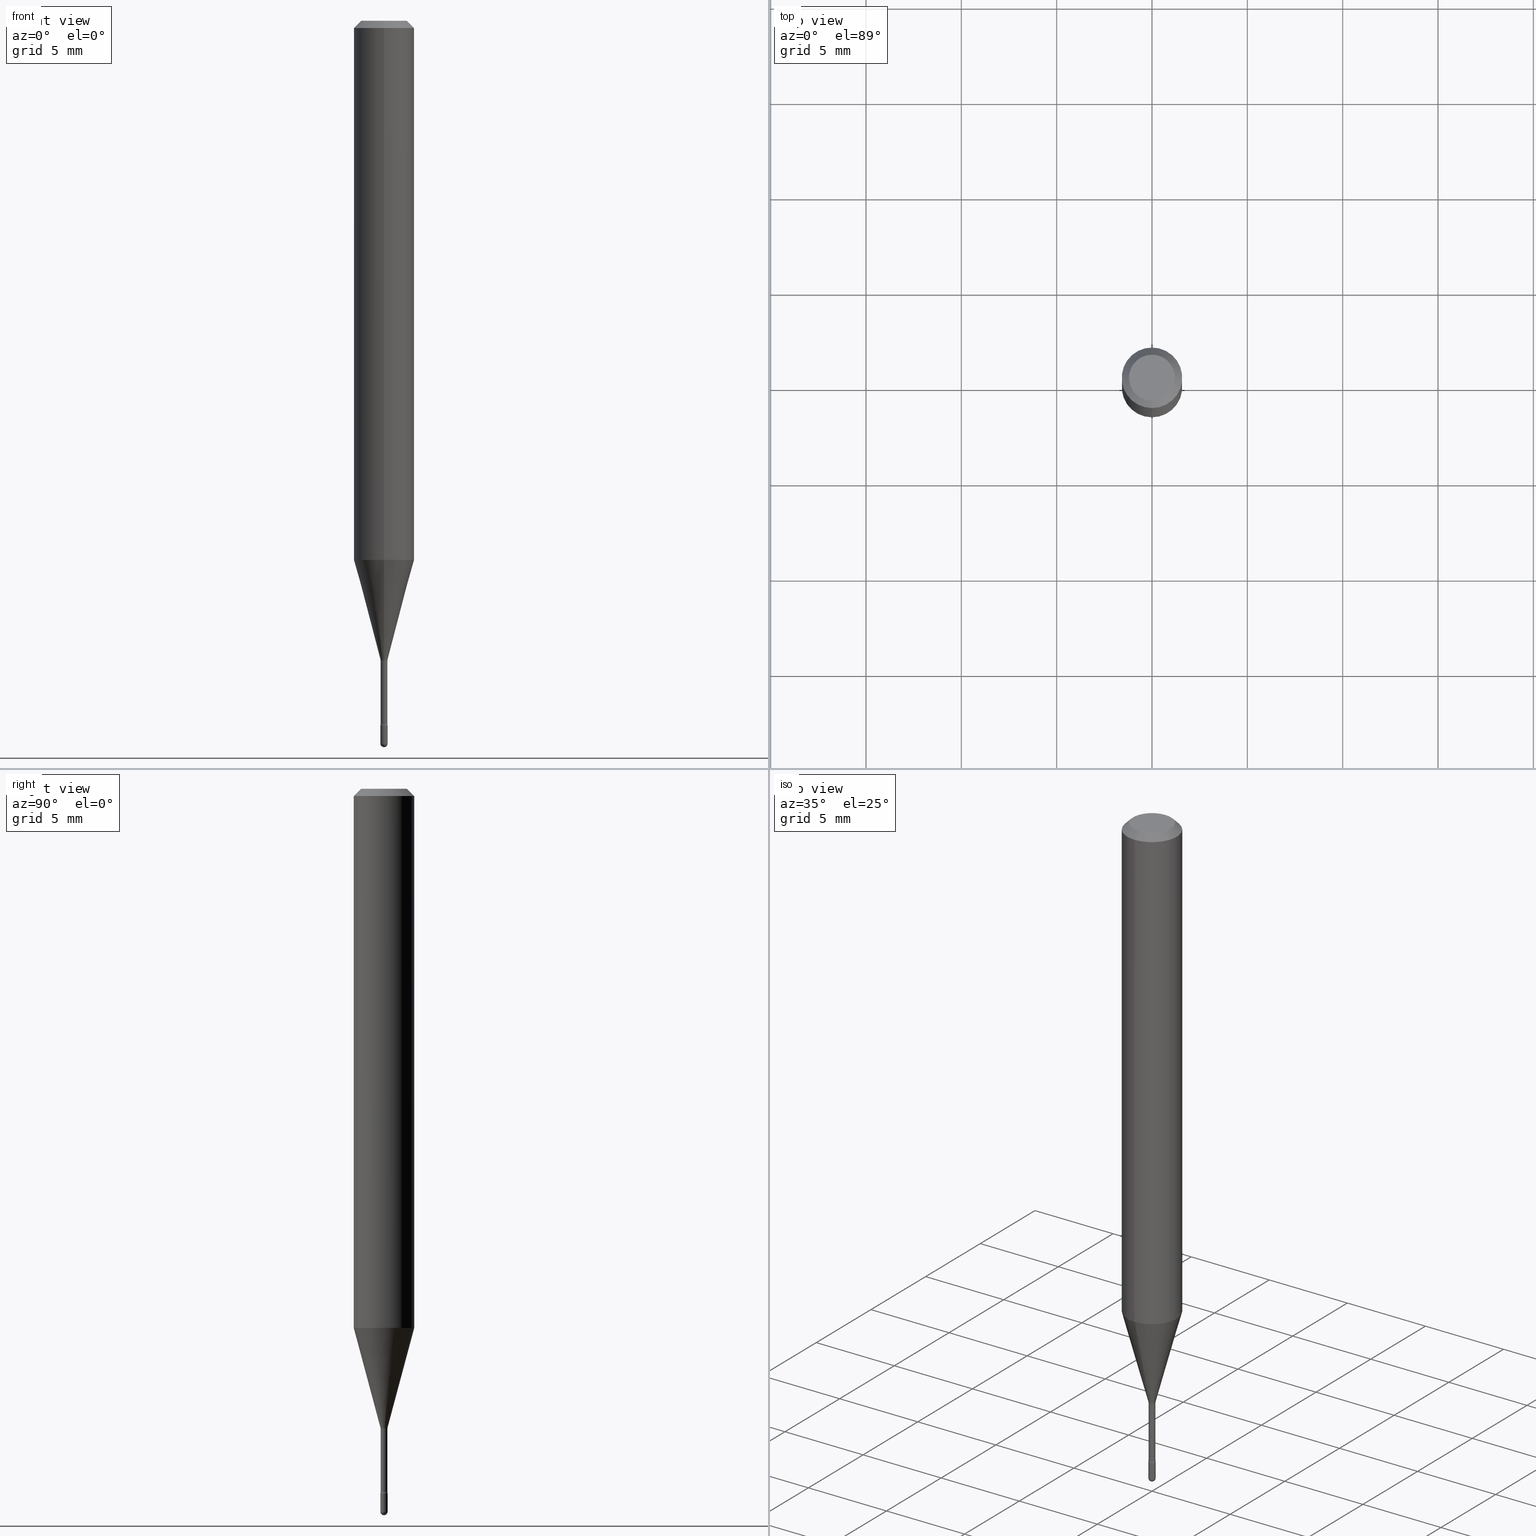
[diagram: canonical four-view strip — front | top / right | iso, engineering-drawing reading convention]
A machine part, canonical four-view strip (front | top / right | iso — engineering-drawing reading convention). The complete STEP part file that produces these views, byte-faithful:
ISO-10303-21;
HEADER;
FILE_DESCRIPTION (( 'STEP AP203' ),
    '1' );
FILE_NAME ('09786.STEP',
    '2024-04-10T01:17:43',
    ( '' ),
    ( '' ),
    'SwSTEP 2.0',
    'SolidWorks 2023',
    '' );
FILE_SCHEMA (( 'CONFIG_CONTROL_DESIGN' ));
ENDSEC;

DATA;
#1 = DIRECTION ( 'NONE',  ( -2.445440204151626769E-29, 3.491522298583058262E-15, 1.000000000000000000 ) ) ;
#2 = EDGE_CURVE ( 'NONE', #88, #235, #210, .T. ) ;
#3 = VERTEX_POINT ( 'NONE', #437 ) ;
#4 = SPHERICAL_SURFACE ( 'NONE', #176, 0.007500000000000062172 ) ;
#5 = PERSON_AND_ORGANIZATION ( #339, #409 ) ;
#6 = APPLICATION_CONTEXT ( 'configuration controlled 3d designs of mechanical parts and assemblies' ) ;
#7 = DIRECTION ( 'NONE',  ( -2.445440204151626769E-29, 3.491522298583058262E-15, 1.000000000000000000 ) ) ;
#8 = EDGE_LOOP ( 'NONE', ( #385, #167, #326, #481 ) ) ;
#9 = DIRECTION ( 'NONE',  ( -4.851104656540964275E-15, -0.7071067811865500152, -0.7071067811865450192 ) ) ;
#10 = AXIS2_PLACEMENT_3D ( 'NONE', #399, #24, #221 ) ;
#11 = PRODUCT_DEFINITION_FORMATION_WITH_SPECIFIED_SOURCE ( 'ANY', '', #51, .NOT_KNOWN. ) ;
#12 = DIRECTION ( 'NONE',  ( -2.445440204151626769E-29, 3.491522298583058262E-15, 1.000000000000000000 ) ) ;
#13 = DIRECTION ( 'NONE',  ( -6.982962677686265922E-15, -1.000000000000000000, 3.491522298583057473E-15 ) ) ;
#14 = VERTEX_POINT ( 'NONE', #174 ) ;
#15 = DIRECTION ( 'NONE',  ( -2.445440204151626769E-29, 3.491522298583058262E-15, 1.000000000000000000 ) ) ;
#16 = DATE_AND_TIME ( #225, #103 ) ;
#17 = EDGE_CURVE ( 'NONE', #554, #135, #349, .T. ) ;
#18 =( NAMED_UNIT ( * ) PLANE_ANGLE_UNIT ( ) SI_UNIT ( $, .RADIAN. ) );
#19 = DIRECTION ( 'NONE',  ( -2.445468806185136597E-29, 3.491481338843145583E-15, 1.000000000000000000 ) ) ;
#20 = COORDINATED_UNIVERSAL_TIME_OFFSET ( 5, 0, .BEHIND. ) ;
#21 = CARTESIAN_POINT ( 'NONE',  ( 4.440892098500896347E-16, 0.06249999999999610034, -1.113057782720306754 ) ) ;
#22 = AXIS2_PLACEMENT_3D ( 'NONE', #97, #260, #432 ) ;
#23 = AXIS2_PLACEMENT_3D ( 'NONE', #220, #207, #389 ) ;
#24 = DIRECTION ( 'NONE',  ( 1.000000000000000000, -7.105427357601001070E-15, 4.926316010154226359E-29 ) ) ;
#25 = EDGE_CURVE ( 'NONE', #118, #364, #275, .T. ) ;
#26 = CARTESIAN_POINT ( 'NONE',  ( 3.558157112999374623E-29, -5.080105348016777334E-15, -1.455000000000000293 ) ) ;
#27 = CARTESIAN_POINT ( 'NONE',  ( 3.668160306227460770E-31, -5.237283447874616285E-17, -0.01500000000000008271 ) ) ;
#28 = VECTOR ( 'NONE', #68, 39.37007874015748143 ) ;
#29 = AXIS2_PLACEMENT_3D ( 'NONE', #478, #7, #178 ) ;
#30 = DIRECTION ( 'NONE',  ( -6.982962677686265922E-15, -1.000000000000000000, 3.483106191921935554E-15 ) ) ;
#31 = ORIENTED_EDGE ( 'NONE', *, *, #59, .F. ) ;
#32 = ORIENTED_EDGE ( 'NONE', *, *, #455, .T. ) ;
#33 = ADVANCED_FACE ( 'NONE', ( #527 ), #4, .T. ) ;
#34 = CARTESIAN_POINT ( 'NONE',  ( -0.007499999999999998855, 5.329070518200750581E-17, -3.689201317691178390E-31 ) ) ;
#35 = VERTEX_POINT ( 'NONE', #419 ) ;
#36 = TOROIDAL_SURFACE ( 'NONE', #441, 0.02205000000000001750, 0.01499999999999995087 ) ;
#37 = CC_DESIGN_APPROVAL ( #239, ( #155 ) ) ;
#38 = PERSON_AND_ORGANIZATION ( #339, #409 ) ;
#39 = CARTESIAN_POINT ( 'NONE',  ( -5.279896712710250158E-17, -0.007561112605668583904, -1.318092501787273330 ) ) ;
#40 = DIRECTION ( 'NONE',  ( -2.445440204151626769E-29, 3.491522298583058656E-15, 1.000000000000000000 ) ) ;
#41 = CARTESIAN_POINT ( 'NONE',  ( 3.649862193231316236E-29, -5.211035898223394834E-15, -1.492499999999999938 ) ) ;
#42 = CC_DESIGN_PERSON_AND_ORGANIZATION_ASSIGNMENT ( #50, #530, ( #11 ) ) ;
#43 = DIRECTION ( 'NONE',  ( -6.982962677686265922E-15, -1.000000000000000000, 0.000000000000000000 ) ) ;
#44 = ORIENTED_EDGE ( 'NONE', *, *, #311, .F. ) ;
#45 = DIRECTION ( 'NONE',  ( 2.445440204151626209E-29, -3.491522298583058656E-15, -1.000000000000000000 ) ) ;
#46 = ORIENTED_EDGE ( 'NONE', *, *, #401, .T. ) ;
#47 = ORIENTED_EDGE ( 'NONE', *, *, #428, .T. ) ;
#48 = ORIENTED_EDGE ( 'NONE', *, *, #143, .F. ) ;
#49 = EDGE_LOOP ( 'NONE', ( #213, #387, #279, #161 ) ) ;
#50 = PERSON_AND_ORGANIZATION ( #339, #409 ) ;
#51 = PRODUCT ( '09786', '09786', '', ( #255 ) ) ;
#52 = DIRECTION ( 'NONE',  ( 6.982962677686265922E-15, 1.000000000000000000, -3.491522298583058656E-15 ) ) ;
#53 = AXIS2_PLACEMENT_3D ( 'NONE', #245, #69, #427 ) ;
#54 = AXIS2_PLACEMENT_3D ( 'NONE', #173, #524, #483 ) ;
#55 = EDGE_CURVE ( 'NONE', #3, #488, #543, .T. ) ;
#56 = DATE_AND_TIME ( #537, #451 ) ;
#57 = DIRECTION ( 'NONE',  ( -2.445440204151626769E-29, 3.491522298583058262E-15, 1.000000000000000000 ) ) ;
#58 = COORDINATED_UNIVERSAL_TIME_OFFSET ( 5, 0, .BEHIND. ) ;
#59 = EDGE_CURVE ( 'NONE', #274, #82, #499, .T. ) ;
#60 = AXIS2_PLACEMENT_3D ( 'NONE', #473, #485, #421 ) ;
#61 = CARTESIAN_POINT ( 'NONE',  ( -4.922988687765313906E-17, -0.007050000000005132890, -1.451353426265657776 ) ) ;
#62 = DATE_AND_TIME ( #446, #357 ) ;
#63 = ORIENTED_EDGE ( 'NONE', *, *, #169, .T. ) ;
#64 = DIRECTION ( 'NONE',  ( -6.982962677686265922E-15, -1.000000000000000000, 0.000000000000000000 ) ) ;
#65 = AXIS2_PLACEMENT_3D ( 'NONE', #563, #440, #141 ) ;
#66 = ADVANCED_FACE ( 'NONE', ( #308 ), #495, .T. ) ;
#67 = ORIENTED_EDGE ( 'NONE', *, *, #175, .F. ) ;
#68 = DIRECTION ( 'NONE',  ( -2.445468806185136877E-29, 3.491481338843145188E-15, 1.000000000000000000 ) ) ;
#69 = DIRECTION ( 'NONE',  ( -2.445440204151626769E-29, 3.491522298583058262E-15, 1.000000000000000000 ) ) ;
#70 = ADVANCED_BREP_SHAPE_REPRESENTATION ( '09786', ( #509, #519, #284 ), #544 ) ;
#71 = ORIENTED_EDGE ( 'NONE', *, *, #311, .T. ) ;
#72 = CARTESIAN_POINT ( 'NONE',  ( 3.232810294138806027E-29, -4.615704448594496414E-15, -1.321974787463811252 ) ) ;
#73 = ORIENTED_EDGE ( 'NONE', *, *, #107, .F. ) ;
#74 = FACE_OUTER_BOUND ( 'NONE', #49, .T. ) ;
#75 = ADVANCED_FACE ( 'NONE', ( #453 ), #397, .T. ) ;
#76 = CLOSED_SHELL ( 'NONE', ( #515, #75, #505, #540, #557, #90, #358, #474, #189, #394, #363, #291, #160, #193 ) ) ;
#77 = AXIS2_PLACEMENT_3D ( 'NONE', #41, #380, #164 ) ;
#78 = ORIENTED_EDGE ( 'NONE', *, *, #463, .F. ) ;
#79 = AXIS2_PLACEMENT_3D ( 'NONE', #130, #295, #520 ) ;
#80 = DIRECTION ( 'NONE',  ( -2.445440204151626769E-29, 3.491522298583058262E-15, 1.000000000000000000 ) ) ;
#81 = DIRECTION ( 'NONE',  ( -2.445440204151626769E-29, 3.491522298583058262E-15, 1.000000000000000000 ) ) ;
#82 = VERTEX_POINT ( 'NONE', #61 ) ;
#83 = CARTESIAN_POINT ( 'NONE',  ( 3.549198019023252615E-29, -5.067432850931467104E-15, -1.451353426265657776 ) ) ;
#84 = CC_DESIGN_PERSON_AND_ORGANIZATION_ASSIGNMENT ( #258, #434, ( #51 ) ) ;
#85 = EDGE_LOOP ( 'NONE', ( #47, #388, #322, #272 ) ) ;
#86 = APPROVAL ( #309, 'UNSPECIFIED' ) ;
#87 = CARTESIAN_POINT ( 'NONE',  ( -4.287811248607203282E-16, -0.06250000000000005551, -0.01499999999999986587 ) ) ;
#88 = VERTEX_POINT ( 'NONE', #536 ) ;
#89 = AXIS2_PLACEMENT_3D ( 'NONE', #104, #105, #445 ) ;
#90 = ADVANCED_FACE ( 'NONE', ( #268 ), #367, .T. ) ;
#91 = DATE_AND_TIME ( #381, #177 ) ;
#92 = CARTESIAN_POINT ( 'NONE',  ( -1.169113584055446105E-44, 1.669184350826100908E-30, 4.780733988912460139E-16 ) ) ;
#93 = LINE ( 'NONE', #486, #236 ) ;
#94 = EDGE_LOOP ( 'NONE', ( #516, #202, #475, #123, #472 ) ) ;
#95 = APPLICATION_PROTOCOL_DEFINITION ( 'international standard', 'config_control_design', 1994, #6 ) ;
#96 = CARTESIAN_POINT ( 'NONE',  ( -5.237222008261123535E-17, -0.007500000000005053839, -1.455000000000000293 ) ) ;
#97 = CARTESIAN_POINT ( 'NONE',  ( 3.549198019023252615E-29, -5.067432850931467104E-15, -1.451353426265657776 ) ) ;
#98 = CARTESIAN_POINT ( 'NONE',  ( -1.539743270429467860E-16, -0.02205000000000508290, -1.451353426265657776 ) ) ;
#99 = EDGE_CURVE ( 'NONE', #274, #121, #458, .T. ) ;
#100 = CARTESIAN_POINT ( 'NONE',  ( 3.668160306227460770E-31, -5.237283447874616285E-17, -0.01500000000000008271 ) ) ;
#101 = CIRCLE ( 'NONE', #327, 0.04749999999999999362 ) ;
#102 = CARTESIAN_POINT ( 'NONE',  ( 3.649862193231316236E-29, -5.211035898223394834E-15, -1.492499999999999938 ) ) ;
#103 = LOCAL_TIME ( 21, 17, 43.00000000000000000, #58 ) ;
#104 = CARTESIAN_POINT ( 'NONE',  ( 3.223316396661397957E-29, -4.602149361585393645E-15, -1.318092501787273330 ) ) ;
#105 = DIRECTION ( 'NONE',  ( -2.445440204151626769E-29, 3.491522298583058262E-15, 1.000000000000000000 ) ) ;
#106 = DIMENSIONAL_EXPONENTS ( 1.000000000000000000, 0.000000000000000000, 0.000000000000000000, 0.000000000000000000, 0.000000000000000000, 0.000000000000000000, 0.000000000000000000 ) ;
#107 = EDGE_CURVE ( 'NONE', #197, #518, #208, .T. ) ;
#108 =( CONVERSION_BASED_UNIT ( 'INCH', #497 ) LENGTH_UNIT ( ) NAMED_UNIT ( #106 ) );
#109 = CARTESIAN_POINT ( 'NONE',  ( -1.169113584055446105E-44, 1.669184350826100908E-30, 4.780733988912460139E-16 ) ) ;
#110 = DATE_TIME_ROLE ( 'creation_date' ) ;
#111 = FACE_OUTER_BOUND ( 'NONE', #422, .T. ) ;
#112 = CIRCLE ( 'NONE', #312, 0.01500000000000002373 ) ;
#113 = DIRECTION ( 'NONE',  ( -6.982962677686266711E-15, -1.000000000000000000, 3.491522298583062601E-15 ) ) ;
#114 = PERSON_AND_ORGANIZATION ( #339, #409 ) ;
#115 = FACE_OUTER_BOUND ( 'NONE', #462, .T. ) ;
#116 = ORIENTED_EDGE ( 'NONE', *, *, #502, .F. ) ;
#117 = DIRECTION ( 'NONE',  ( 7.105427357601001859E-15, 1.000000000000000000, 0.000000000000000000 ) ) ;
#118 = VERTEX_POINT ( 'NONE', #145 ) ;
#119 = AXIS2_PLACEMENT_3D ( 'NONE', #487, #217, #113 ) ;
#120 = CARTESIAN_POINT ( 'NONE',  ( 5.372493636221887753E-17, 0.007561112605659379461, -1.318092501787273330 ) ) ;
#121 = VERTEX_POINT ( 'NONE', #230 ) ;
#122 = CARTESIAN_POINT ( 'NONE',  ( 5.009326287108727769E-17, 0.007050000000000031068, 4.534581666862353586E-16 ) ) ;
#123 = ORIENTED_EDGE ( 'NONE', *, *, #436, .F. ) ;
#124 = CARTESIAN_POINT ( 'NONE',  ( 0.000000000000000000, 0.000000000000000000, 0.000000000000000000 ) ) ;
#125 = ORIENTED_EDGE ( 'NONE', *, *, #436, .T. ) ;
#126 = DIRECTION ( 'NONE',  ( -2.438088387897960049E-29, 3.491481338843145188E-15, 1.000000000000000000 ) ) ;
#127 = AXIS2_PLACEMENT_3D ( 'NONE', #288, #559, #117 ) ;
#128 = AXIS2_PLACEMENT_3D ( 'NONE', #124, #504, #369 ) ;
#129 = CARTESIAN_POINT ( 'NONE',  ( 3.649862193231316236E-29, -5.211035898223394834E-15, -1.492499999999999938 ) ) ;
#130 = CARTESIAN_POINT ( 'NONE',  ( 2.721916251408103540E-29, -3.886266067979366571E-15, -1.113057782720306532 ) ) ;
#131 = CC_DESIGN_PERSON_AND_ORGANIZATION_ASSIGNMENT ( #405, #222, ( #11 ) ) ;
#132 = EDGE_LOOP ( 'NONE', ( #296, #240, #456, #67 ) ) ;
#133 = CARTESIAN_POINT ( 'NONE',  ( 3.558115497040617955E-29, -5.080164944438349964E-15, -1.455000000000000293 ) ) ;
#134 = EDGE_CURVE ( 'NONE', #518, #197, #101, .T. ) ;
#135 = VERTEX_POINT ( 'NONE', #404 ) ;
#136 = DIRECTION ( 'NONE',  ( -2.445468806185136597E-29, 3.491481338843145583E-15, 1.000000000000000000 ) ) ;
#137 = ORIENTED_EDGE ( 'NONE', *, *, #25, .T. ) ;
#138 = ORIENTED_EDGE ( 'NONE', *, *, #134, .F. ) ;
#139 = VECTOR ( 'NONE', #153, 39.37007874015748143 ) ;
#140 = CIRCLE ( 'NONE', #321, 0.007499999999999999722 ) ;
#141 = DIRECTION ( 'NONE',  ( -7.105427357601000281E-15, -1.000000000000000000, 0.000000000000000000 ) ) ;
#142 = EDGE_LOOP ( 'NONE', ( #163, #156, #32, #196 ) ) ;
#143 = EDGE_CURVE ( 'NONE', #249, #170, #390, .T. ) ;
#144 = DIRECTION ( 'NONE',  ( -6.982962677686265922E-15, -1.000000000000000000, 3.491522298583058656E-15 ) ) ;
#145 = CARTESIAN_POINT ( 'NONE',  ( -0.007499999999999998855, -5.092279917938078523E-15, -1.492499999999999938 ) ) ;
#146 = DIRECTION ( 'NONE',  ( -2.445440204151626769E-29, 3.491522298583058262E-15, 1.000000000000000000 ) ) ;
#147 = AXIS2_PLACEMENT_3D ( 'NONE', #351, #45, #52 ) ;
#148 = CIRCLE ( 'NONE', #195, 0.007499999999999999722 ) ;
#149 = EDGE_CURVE ( 'NONE', #235, #14, #359, .T. ) ;
#150 = CC_DESIGN_PERSON_AND_ORGANIZATION_ASSIGNMENT ( #5, #523, ( #420 ) ) ;
#151 = DATE_TIME_ROLE ( 'classification_date' ) ;
#152 = CARTESIAN_POINT ( 'NONE',  ( 3.668160306227460770E-31, -5.237283447874616285E-17, -0.01500000000000008271 ) ) ;
#153 = DIRECTION ( 'NONE',  ( -2.445440204151626769E-29, 3.491522298583058656E-15, 1.000000000000000000 ) ) ;
#154 = AXIS2_PLACEMENT_3D ( 'NONE', #392, #12, #179 ) ;
#155 = SECURITY_CLASSIFICATION ( '', '', #398 ) ;
#156 = ORIENTED_EDGE ( 'NONE', *, *, #59, .T. ) ;
#157 = ORIENTED_EDGE ( 'NONE', *, *, #184, .T. ) ;
#158 = CIRCLE ( 'NONE', #53, 0.007561112605663981683 ) ;
#159 = CIRCLE ( 'NONE', #248, 0.01499999999999995087 ) ;
#160 = ADVANCED_FACE ( 'NONE', ( #319 ), #500, .T. ) ;
#161 = ORIENTED_EDGE ( 'NONE', *, *, #482, .F. ) ;
#162 = CARTESIAN_POINT ( 'NONE',  ( 3.649862193231316236E-29, -5.211035898223394834E-15, -1.492499999999999938 ) ) ;
#163 = ORIENTED_EDGE ( 'NONE', *, *, #250, .F. ) ;
#164 = DIRECTION ( 'NONE',  ( 1.000000000000000000, -6.982962677686269077E-15, 0.000000000000000000 ) ) ;
#165 = DIRECTION ( 'NONE',  ( -2.445468806185136597E-29, 3.491481338843145583E-15, 1.000000000000000000 ) ) ;
#166 = AXIS2_PLACEMENT_3D ( 'NONE', #109, #182, #532 ) ;
#167 = ORIENTED_EDGE ( 'NONE', *, *, #428, .F. ) ;
#168 = FACE_OUTER_BOUND ( 'NONE', #282, .T. ) ;
#169 = EDGE_CURVE ( 'NONE', #254, #362, #402, .T. ) ;
#170 = VERTEX_POINT ( 'NONE', #529 ) ;
#171 = CARTESIAN_POINT ( 'NONE',  ( 5.237222008268371194E-17, 0.007499999999994818971, -1.492499999999999938 ) ) ;
#172 = DIRECTION ( 'NONE',  ( -1.000000000000000000, 6.982962677686265922E-15, -4.883557194083113462E-29 ) ) ;
#173 = CARTESIAN_POINT ( 'NONE',  ( 3.549239530682585460E-29, -5.067373403872605275E-15, -1.451353426265657776 ) ) ;
#174 = CARTESIAN_POINT ( 'NONE',  ( -4.364351673553912750E-16, -0.06250000000000005551, -0.01499999999999986587 ) ) ;
#175 = EDGE_CURVE ( 'NONE', #135, #14, #533, .T. ) ;
#176 = AXIS2_PLACEMENT_3D ( 'NONE', #305, #172, #333 ) ;
#177 = LOCAL_TIME ( 21, 17, 43.00000000000000000, #252 ) ;
#178 = DIRECTION ( 'NONE',  ( -6.982962677686265922E-15, -1.000000000000000000, 4.370956789862821150E-15 ) ) ;
#179 = DIRECTION ( 'NONE',  ( -6.982962677686265133E-15, -1.000000000000000000, 0.000000000000000000 ) ) ;
#180 = DIRECTION ( 'NONE',  ( -6.982962677686266711E-15, -1.000000000000000000, 0.000000000000000000 ) ) ;
#181 = CARTESIAN_POINT ( 'NONE',  ( -4.364351673553643551E-16, -0.06250000000000388578, -1.113057782720306310 ) ) ;
#182 = DIRECTION ( 'NONE',  ( -2.445440204151626769E-29, 3.491522298583058262E-15, 1.000000000000000000 ) ) ;
#183 = PERSON_AND_ORGANIZATION ( #339, #409 ) ;
#184 = EDGE_CURVE ( 'NONE', #35, #554, #281, .T. ) ;
#185 = DIRECTION ( 'NONE',  ( 1.000000000000000000, -6.982962677686268288E-15, 0.000000000000000000 ) ) ;
#186 = CIRCLE ( 'NONE', #127, 0.01500000000000002373 ) ;
#187 = DIRECTION ( 'NONE',  ( 2.445440204151626769E-29, -3.491522298583058262E-15, -1.000000000000000000 ) ) ;
#188 = APPROVAL_PERSON_ORGANIZATION ( #183, #239, #403 ) ;
#189 = ADVANCED_FACE ( 'NONE', ( #465 ), #200, .T. ) ;
#190 = DIRECTION ( 'NONE',  ( -6.982962677686266711E-15, -1.000000000000000000, 3.491522298583058262E-15 ) ) ;
#191 = FACE_OUTER_BOUND ( 'NONE', #94, .T. ) ;
#192 = DIRECTION ( 'NONE',  ( 2.445440204151626769E-29, -3.491522298583058262E-15, -1.000000000000000000 ) ) ;
#193 = ADVANCED_FACE ( 'NONE', ( #417 ), #490, .F. ) ;
#194 = AXIS2_PLACEMENT_3D ( 'NONE', #553, #126, #280 ) ;
#195 = AXIS2_PLACEMENT_3D ( 'NONE', #318, #494, #227 ) ;
#196 = ORIENTED_EDGE ( 'NONE', *, *, #299, .F. ) ;
#197 = VERTEX_POINT ( 'NONE', #290 ) ;
#198 = FACE_OUTER_BOUND ( 'NONE', #342, .T. ) ;
#199 = LINE ( 'NONE', #122, #425 ) ;
#200 = CONICAL_SURFACE ( 'NONE', #267, 0.06250000000000000000, 0.7853981633974483900 ) ;
#201 = CC_DESIGN_APPROVAL ( #86, ( #11 ) ) ;
#202 = ORIENTED_EDGE ( 'NONE', *, *, #325, .T. ) ;
#203 = ORIENTED_EDGE ( 'NONE', *, *, #206, .F. ) ;
#204 = CARTESIAN_POINT ( 'NONE',  ( 5.169198402658288125E-17, 0.007049999999994997768, -1.451353426265657776 ) ) ;
#205 = ORIENTED_EDGE ( 'NONE', *, *, #415, .T. ) ;
#206 = EDGE_CURVE ( 'NONE', #88, #35, #158, .T. ) ;
#207 = DIRECTION ( 'NONE',  ( -2.445468806185136597E-29, 3.491481338843145583E-15, 1.000000000000000000 ) ) ;
#208 = CIRCLE ( 'NONE', #320, 0.04749999999999999362 ) ;
#209 = TOROIDAL_SURFACE ( 'NONE', #336, 0.02205000000000000016, 0.01500000000000002373 ) ;
#210 = LINE ( 'NONE', #39, #506 ) ;
#211 = APPLICATION_PROTOCOL_DEFINITION ( 'international standard', 'config_control_design', 1994, #350 ) ;
#212 = CYLINDRICAL_SURFACE ( 'NONE', #391, 0.06250000000000000000 ) ;
#213 = ORIENTED_EDGE ( 'NONE', *, *, #184, .F. ) ;
#214 = PRODUCT_DEFINITION_SHAPE ( 'NONE', 'NONE',  #420 ) ;
#215 = ORIENTED_EDGE ( 'NONE', *, *, #549, .F. ) ;
#216 = CARTESIAN_POINT ( 'NONE',  ( 3.840629472727447874E-16, 0.04749999999999999362, -2.485923956665947374E-16 ) ) ;
#217 = DIRECTION ( 'NONE',  ( -2.445440204151626769E-29, 3.491522298583058262E-15, 1.000000000000000000 ) ) ;
#218 = PERSON_AND_ORGANIZATION ( #339, #409 ) ;
#219 = AXIS2_PLACEMENT_3D ( 'NONE', #234, #276, #400 ) ;
#220 = CARTESIAN_POINT ( 'NONE',  ( 3.649862193231316236E-29, -5.211035898223394834E-15, -1.492499999999999938 ) ) ;
#221 = DIRECTION ( 'NONE',  ( 7.105427357601000281E-15, 1.000000000000000000, 0.000000000000000000 ) ) ;
#222 = PERSON_AND_ORGANIZATION_ROLE ( 'creator' ) ;
#223 = DIRECTION ( 'NONE',  ( 6.982962677686265922E-15, 1.000000000000000000, 0.000000000000000000 ) ) ;
#224 = EDGE_CURVE ( 'NONE', #35, #88, #479, .T. ) ;
#225 = CALENDAR_DATE ( 2024, 9, 4 ) ;
#226 = AXIS2_PLACEMENT_3D ( 'NONE', #384, #564, #344 ) ;
#227 = DIRECTION ( 'NONE',  ( -6.982962677686265922E-15, -1.000000000000000000, 0.000000000000000000 ) ) ;
#228 = CIRCLE ( 'NONE', #79, 0.06250000000000000000 ) ;
#229 = CARTESIAN_POINT ( 'NONE',  ( 3.232848105305976376E-29, -4.615650300851030950E-15, -1.321974787463811252 ) ) ;
#230 = CARTESIAN_POINT ( 'NONE',  ( 5.329070518204289361E-17, 0.007499999999994893564, -1.455000000000000293 ) ) ;
#231 = SHAPE_DEFINITION_REPRESENTATION ( #214, #70 ) ;
#232 = CYLINDRICAL_SURFACE ( 'NONE', #219, 0.007499999999999998855 ) ;
#233 = EDGE_CURVE ( 'NONE', #518, #135, #93, .T. ) ;
#234 = CARTESIAN_POINT ( 'NONE',  ( 0.000000000000000000, 0.000000000000000000, 0.000000000000000000 ) ) ;
#235 = VERTEX_POINT ( 'NONE', #181 ) ;
#236 = VECTOR ( 'NONE', #266, 39.37007874015748143 ) ;
#237 = APPROVAL_PERSON_ORGANIZATION ( #114, #86, #439 ) ;
#238 = CARTESIAN_POINT ( 'NONE',  ( 5.009326287112269015E-17, 0.007049999999995382877, -1.321974787463811252 ) ) ;
#239 = APPROVAL ( #353, 'UNSPECIFIED' ) ;
#240 = ORIENTED_EDGE ( 'NONE', *, *, #482, .T. ) ;
#241 = FACE_OUTER_BOUND ( 'NONE', #433, .T. ) ;
#242 = ORIENTED_EDGE ( 'NONE', *, *, #423, .T. ) ;
#243 = EDGE_LOOP ( 'NONE', ( #44, #203, #477, #63 ) ) ;
#244 = CYLINDRICAL_SURFACE ( 'NONE', #128, 0.007499999999999998855 ) ;
#245 = CARTESIAN_POINT ( 'NONE',  ( 3.223316396661397957E-29, -4.602149361585393645E-15, -1.318092501787273330 ) ) ;
#246 = ORIENTED_EDGE ( 'NONE', *, *, #496, .T. ) ;
#247 = AXIS2_PLACEMENT_3D ( 'NONE', #498, #443, #223 ) ;
#248 = AXIS2_PLACEMENT_3D ( 'NONE', #98, #476, #180 ) ;
#249 = VERTEX_POINT ( 'NONE', #418 ) ;
#250 = EDGE_CURVE ( 'NONE', #274, #362, #199, .T. ) ;
#251 = ORIENTED_EDGE ( 'NONE', *, *, #55, .T. ) ;
#252 = COORDINATED_UNIVERSAL_TIME_OFFSET ( 5, 0, .BEHIND. ) ;
#253 = LINE ( 'NONE', #262, #426 ) ;
#254 = VERTEX_POINT ( 'NONE', #373 ) ;
#255 = MECHANICAL_CONTEXT ( 'NONE', #6, 'mechanical' ) ;
#256 = VECTOR ( 'NONE', #484, 39.37007874015748143 ) ;
#257 = ORIENTED_EDGE ( 'NONE', *, *, #354, .F. ) ;
#258 = PERSON_AND_ORGANIZATION ( #339, #409 ) ;
#259 = CARTESIAN_POINT ( 'NONE',  ( -1.539743270429498181E-16, -0.02205000000000461452, -1.321974787463811252 ) ) ;
#260 = DIRECTION ( 'NONE',  ( -2.445440204151626769E-29, 3.491522298583058262E-15, 1.000000000000000000 ) ) ;
#261 = DIRECTION ( 'NONE',  ( 0.000000000000000000, 0.000000000000000000, 1.000000000000000000 ) ) ;
#262 = CARTESIAN_POINT ( 'NONE',  ( -4.922988687768839744E-17, -0.007050000000000031068, 5.026886310962567679E-16 ) ) ;
#263 = DIRECTION ( 'NONE',  ( -1.807323732225329350E-15, -0.2588190451025180194, 0.9659258262890689783 ) ) ;
#264 = ORIENTED_EDGE ( 'NONE', *, *, #134, .T. ) ;
#265 = LINE ( 'NONE', #87, #513 ) ;
#266 = DIRECTION ( 'NONE',  ( 4.937700262164548042E-15, 0.7071067811865451302, -0.7071067811865499042 ) ) ;
#267 = AXIS2_PLACEMENT_3D ( 'NONE', #152, #192, #375 ) ;
#268 = FACE_OUTER_BOUND ( 'NONE', #332, .T. ) ;
#269 = DIRECTION ( 'NONE',  ( -2.445468806185136597E-29, 3.491481338843145583E-15, 1.000000000000000000 ) ) ;
#270 =( NAMED_UNIT ( * ) SI_UNIT ( $, .STERADIAN. ) SOLID_ANGLE_UNIT ( ) );
#271 = DIRECTION ( 'NONE',  ( -6.982962677686266711E-15, -1.000000000000000000, 3.491522298583058262E-15 ) ) ;
#272 = ORIENTED_EDGE ( 'NONE', *, *, #455, .F. ) ;
#273 = CARTESIAN_POINT ( 'NONE',  ( -1.169113584055446105E-44, 1.669184350826100908E-30, 4.780733988912460139E-16 ) ) ;
#274 = VERTEX_POINT ( 'NONE', #204 ) ;
#275 = CIRCLE ( 'NONE', #77, 0.007499999999999998855 ) ;
#276 = DIRECTION ( 'NONE',  ( -2.445468806185136597E-29, 3.491481338843145583E-15, 1.000000000000000000 ) ) ;
#277 = ADVANCED_FACE ( 'NONE', ( #241 ), #244, .T. ) ;
#278 = DIRECTION ( 'NONE',  ( -2.445440204151626769E-29, 3.491522298583058262E-15, 1.000000000000000000 ) ) ;
#279 = ORIENTED_EDGE ( 'NONE', *, *, #2, .T. ) ;
#280 = DIRECTION ( 'NONE',  ( 1.000000000000000000, -6.982962677686265922E-15, 4.876176775795935793E-29 ) ) ;
#281 = LINE ( 'NONE', #120, #469 ) ;
#282 = EDGE_LOOP ( 'NONE', ( #264, #377 ) ) ;
#283 = CIRCLE ( 'NONE', #60, 0.06250000000000000000 ) ;
#284 = AXIS2_PLACEMENT_3D ( 'NONE', #558, #261, #338 ) ;
#285 = DIRECTION ( 'NONE',  ( 1.839019923739599526E-15, 0.2588190451025248473, 0.9659258262890670910 ) ) ;
#286 = DIRECTION ( 'NONE',  ( -2.445440204151626769E-29, 3.491522298583058262E-15, 1.000000000000000000 ) ) ;
#287 = EDGE_LOOP ( 'NONE', ( #246, #294 ) ) ;
#288 = CARTESIAN_POINT ( 'NONE',  ( 1.566746732351343861E-16, 0.02204999999999538579, -1.321974787463811252 ) ) ;
#289 = EDGE_LOOP ( 'NONE', ( #303, #71, #408, #503 ) ) ;
#290 = CARTESIAN_POINT ( 'NONE',  ( -3.773273898774340269E-16, -0.04749999999999999362, 8.310222269879576198E-17 ) ) ;
#291 = ADVANCED_FACE ( 'NONE', ( #414 ), #36, .F. ) ;
#292 = AXIS2_PLACEMENT_3D ( 'NONE', #100, #278, #30 ) ;
#293 = LOCAL_TIME ( 21, 17, 43.00000000000000000, #448 ) ;
#294 = ORIENTED_EDGE ( 'NONE', *, *, #143, .T. ) ;
#295 = DIRECTION ( 'NONE',  ( -2.445440204151626769E-29, 3.491522298583058262E-15, 1.000000000000000000 ) ) ;
#296 = ORIENTED_EDGE ( 'NONE', *, *, #17, .F. ) ;
#297 = DIRECTION ( 'NONE',  ( -6.982962677686265922E-15, -1.000000000000000000, 0.000000000000000000 ) ) ;
#298 = ORIENTED_EDGE ( 'NONE', *, *, #383, .T. ) ;
#299 = EDGE_CURVE ( 'NONE', #362, #254, #550, .T. ) ;
#300 = DIRECTION ( 'NONE',  ( 1.000000000000000000, -6.982962677686268288E-15, 0.000000000000000000 ) ) ;
#301 = CIRCLE ( 'NONE', #406, 0.007499999999999998855 ) ;
#302 = AXIS2_PLACEMENT_3D ( 'NONE', #27, #187, #454 ) ;
#303 = ORIENTED_EDGE ( 'NONE', *, *, #224, .F. ) ;
#304 = COORDINATED_UNIVERSAL_TIME_OFFSET ( 5, 0, .BEHIND. ) ;
#305 = CARTESIAN_POINT ( 'NONE',  ( 3.649862193231316236E-29, -5.211035898223394834E-15, -1.492499999999999938 ) ) ;
#306 = VERTEX_POINT ( 'NONE', #457 ) ;
#307 = CARTESIAN_POINT ( 'NONE',  ( 0.007499999999999998855, -5.237222008264699293E-17, 3.657132581846951319E-31 ) ) ;
#308 = FACE_OUTER_BOUND ( 'NONE', #366, .T. ) ;
#309 = APPROVAL_STATUS ( 'not_yet_approved' ) ;
#310 = ORIENTED_EDGE ( 'NONE', *, *, #149, .F. ) ;
#311 = EDGE_CURVE ( 'NONE', #35, #362, #186, .T. ) ;
#312 = AXIS2_PLACEMENT_3D ( 'NONE', #259, #435, #378 ) ;
#313 = CIRCLE ( 'NONE', #29, 0.06250000000000000000 ) ;
#314 = DIRECTION ( 'NONE',  ( 1.000000000000000000, -6.982962677686269077E-15, 0.000000000000000000 ) ) ;
#315 = UNCERTAINTY_MEASURE_WITH_UNIT (LENGTH_MEASURE( 1.000000000000000082E-05 ), #108, 'distance_accuracy_value', 'NONE');
#316 = CYLINDRICAL_SURFACE ( 'NONE', #470, 0.06250000000000000000 ) ;
#317 = ADVANCED_FACE ( 'NONE', ( #412 ), #555, .T. ) ;
#318 = CARTESIAN_POINT ( 'NONE',  ( 3.558115497040617955E-29, -5.080164944438349964E-15, -1.455000000000000293 ) ) ;
#319 = FACE_OUTER_BOUND ( 'NONE', #142, .T. ) ;
#320 = AXIS2_PLACEMENT_3D ( 'NONE', #356, #15, #190 ) ;
#321 = AXIS2_PLACEMENT_3D ( 'NONE', #133, #346, #297 ) ;
#322 = ORIENTED_EDGE ( 'NONE', *, *, #169, .F. ) ;
#323 = ORIENTED_EDGE ( 'NONE', *, *, #383, .F. ) ;
#324 = DIRECTION ( 'NONE',  ( -2.445440204151626769E-29, 3.491522298583058656E-15, 1.000000000000000000 ) ) ;
#325 = EDGE_CURVE ( 'NONE', #118, #249, #460, .T. ) ;
#326 = ORIENTED_EDGE ( 'NONE', *, *, #407, .T. ) ;
#327 = AXIS2_PLACEMENT_3D ( 'NONE', #352, #57, #271 ) ;
#328 = AXIS2_PLACEMENT_3D ( 'NONE', #102, #269, #314 ) ;
#329 = DIRECTION ( 'NONE',  ( -2.445440204151626209E-29, 3.491522298583058656E-15, 1.000000000000000000 ) ) ;
#330 = ORIENTED_EDGE ( 'NONE', *, *, #534, .F. ) ;
#331 = DIRECTION ( 'NONE',  ( -6.982962677686265133E-15, -1.000000000000000000, 0.000000000000000000 ) ) ;
#332 = EDGE_LOOP ( 'NONE', ( #438, #157, #116, #374 ) ) ;
#333 = DIRECTION ( 'NONE',  ( 6.982962677686265922E-15, 1.000000000000000000, 0.000000000000000000 ) ) ;
#334 = APPROVAL_ROLE ( '' ) ;
#335 = AXIS2_PLACEMENT_3D ( 'NONE', #72, #376, #331 ) ;
#336 = AXIS2_PLACEMENT_3D ( 'NONE', #528, #146, #360 ) ;
#337 = ORIENTED_EDGE ( 'NONE', *, *, #233, .F. ) ;
#338 = DIRECTION ( 'NONE',  ( 1.000000000000000000, 0.000000000000000000, 0.000000000000000000 ) ) ;
#339 = PERSON ( 'UNSPECIFIED', 'UNSPECIFIED', 'UNSPECIFIED', ('UNSPECIFIED'), ('UNSPECIFIED'), ('UNSPECIFIED') ) ;
#340 = FACE_OUTER_BOUND ( 'NONE', #132, .T. ) ;
#341 = CC_DESIGN_DATE_AND_TIME_ASSIGNMENT ( #56, #110, ( #420 ) ) ;
#342 = EDGE_LOOP ( 'NONE', ( #215, #459 ) ) ;
#343 = CARTESIAN_POINT ( 'NONE',  ( 3.558157112999374623E-29, -5.080105348016777334E-15, -1.455000000000000293 ) ) ;
#344 = DIRECTION ( 'NONE',  ( -6.982962677686265922E-15, -1.000000000000000000, 0.000000000000000000 ) ) ;
#345 = DIRECTION ( 'NONE',  ( 6.982962677686265922E-15, 1.000000000000000000, 0.000000000000000000 ) ) ;
#346 = DIRECTION ( 'NONE',  ( -2.445440204151626769E-29, 3.491522298583058262E-15, 1.000000000000000000 ) ) ;
#347 = CONICAL_SURFACE ( 'NONE', #561, 0.007561112605663981683, 0.2617993877991501850 ) ;
#348 = CC_DESIGN_SECURITY_CLASSIFICATION ( #155, ( #11 ) ) ;
#349 = LINE ( 'NONE', #556, #256 ) ;
#350 = APPLICATION_CONTEXT ( 'configuration controlled 3d designs of mechanical parts and assemblies' ) ;
#351 = CARTESIAN_POINT ( 'NONE',  ( 3.316907271900976096E-16, 0.04749999999999999362, 3.181684702097800109E-17 ) ) ;
#352 = CARTESIAN_POINT ( 'NONE',  ( 2.023344873123560110E-45, -2.889258963187964091E-31, -8.274508648389948771E-17 ) ) ;
#353 = APPROVAL_STATUS ( 'not_yet_approved' ) ;
#354 = EDGE_CURVE ( 'NONE', #488, #118, #301, .T. ) ;
#355 = AXIS2_PLACEMENT_3D ( 'NONE', #129, #521, #345 ) ;
#356 = CARTESIAN_POINT ( 'NONE',  ( 2.023344873123560110E-45, -2.889258963187964091E-31, -8.274508648389948771E-17 ) ) ;
#357 = LOCAL_TIME ( 21, 17, 43.00000000000000000, #20 ) ;
#358 = ADVANCED_FACE ( 'NONE', ( #74 ), #347, .T. ) ;
#359 = LINE ( 'NONE', #538, #139 ) ;
#360 = DIRECTION ( 'NONE',  ( -6.982962677686265922E-15, -1.000000000000000000, 3.491522298583058262E-15 ) ) ;
#361 = CIRCLE ( 'NONE', #328, 0.007499999999999998855 ) ;
#362 = VERTEX_POINT ( 'NONE', #238 ) ;
#363 = ADVANCED_FACE ( 'NONE', ( #198 ), #410, .F. ) ;
#364 = VERTEX_POINT ( 'NONE', #517 ) ;
#365 = CARTESIAN_POINT ( 'NONE',  ( 5.237222008268257796E-17, 0.007499999999994919585, -1.455000000000000293 ) ) ;
#366 = EDGE_LOOP ( 'NONE', ( #545, #298, #565, #257 ) ) ;
#367 = CONICAL_SURFACE ( 'NONE', #89, 0.007561112605663981683, 0.2617993877991501850 ) ;
#368 = APPROVAL_PERSON_ORGANIZATION ( #38, #447, #334 ) ;
#369 = DIRECTION ( 'NONE',  ( 1.000000000000000000, -6.982962677686266711E-15, 4.876176775795935793E-29 ) ) ;
#370 = EDGE_CURVE ( 'NONE', #88, #254, #112, .T. ) ;
#371 = ORIENTED_EDGE ( 'NONE', *, *, #99, .T. ) ;
#372 = DESIGN_CONTEXT ( 'detailed design', #350, 'design' ) ;
#373 = CARTESIAN_POINT ( 'NONE',  ( -4.922988687765581995E-17, -0.007050000000004612473, -1.321974787463811252 ) ) ;
#374 = ORIENTED_EDGE ( 'NONE', *, *, #2, .F. ) ;
#375 = DIRECTION ( 'NONE',  ( 6.982962677686265922E-15, 1.000000000000000000, -3.483106191921935554E-15 ) ) ;
#376 = DIRECTION ( 'NONE',  ( -2.445440204151626769E-29, 3.491522298583058262E-15, 1.000000000000000000 ) ) ;
#377 = ORIENTED_EDGE ( 'NONE', *, *, #107, .T. ) ;
#378 = DIRECTION ( 'NONE',  ( -6.982962677686265133E-15, -1.000000000000000000, 0.000000000000000000 ) ) ;
#379 = AXIS2_PLACEMENT_3D ( 'NONE', #343, #136, #300 ) ;
#380 = DIRECTION ( 'NONE',  ( -2.445468806185136597E-29, 3.491481338843145583E-15, 1.000000000000000000 ) ) ;
#381 = CALENDAR_DATE ( 2024, 9, 4 ) ;
#382 = LINE ( 'NONE', #307, #562 ) ;
#383 = EDGE_CURVE ( 'NONE', #3, #364, #416, .T. ) ;
#384 = CARTESIAN_POINT ( 'NONE',  ( 3.223316396661397957E-29, -4.602149361585393645E-15, -1.318092501787273330 ) ) ;
#385 = ORIENTED_EDGE ( 'NONE', *, *, #99, .F. ) ;
#386 = FACE_OUTER_BOUND ( 'NONE', #289, .T. ) ;
#387 = ORIENTED_EDGE ( 'NONE', *, *, #224, .T. ) ;
#388 = ORIENTED_EDGE ( 'NONE', *, *, #250, .T. ) ;
#389 = DIRECTION ( 'NONE',  ( 1.000000000000000000, -6.982962677686269077E-15, 0.000000000000000000 ) ) ;
#390 = CIRCLE ( 'NONE', #512, 0.007499999999999999722 ) ;
#391 = AXIS2_PLACEMENT_3D ( 'NONE', #92, #1, #13 ) ;
#392 = CARTESIAN_POINT ( 'NONE',  ( 3.232810294138806027E-29, -4.615704448594496414E-15, -1.321974787463811252 ) ) ;
#393 = ORIENTED_EDGE ( 'NONE', *, *, #502, .T. ) ;
#394 = ADVANCED_FACE ( 'NONE', ( #168 ), #514, .F. ) ;
#395 = DATE_AND_TIME ( #489, #293 ) ;
#396 = DIRECTION ( 'NONE',  ( -2.445468806185136877E-29, 3.491481338843145188E-15, 1.000000000000000000 ) ) ;
#397 = CYLINDRICAL_SURFACE ( 'NONE', #166, 0.007050000000000031068 ) ;
#398 = SECURITY_CLASSIFICATION_LEVEL ( 'unclassified' ) ;
#399 = CARTESIAN_POINT ( 'NONE',  ( 1.566746732351376648E-16, 0.02204999999999494864, -1.451353426265657776 ) ) ;
#400 = DIRECTION ( 'NONE',  ( 1.000000000000000000, -6.982962677686266711E-15, 4.876176775795935793E-29 ) ) ;
#401 = EDGE_CURVE ( 'NONE', #14, #135, #283, .T. ) ;
#402 = CIRCLE ( 'NONE', #154, 0.007049999999999997241 ) ;
#403 = APPROVAL_ROLE ( '' ) ;
#404 = CARTESIAN_POINT ( 'NONE',  ( 4.440892098500899305E-16, 0.06249999999999995143, -0.01500000000000030129 ) ) ;
#405 = PERSON_AND_ORGANIZATION ( #339, #409 ) ;
#406 = AXIS2_PLACEMENT_3D ( 'NONE', #162, #165, #467 ) ;
#407 = EDGE_CURVE ( 'NONE', #82, #510, #159, .T. ) ;
#408 = ORIENTED_EDGE ( 'NONE', *, *, #299, .T. ) ;
#409 = ORGANIZATION ( 'UNSPECIFIED', 'UNSPECIFIED', '' ) ;
#410 = PLANE ( 'NONE',  #525 ) ;
#411 = ORIENTED_EDGE ( 'NONE', *, *, #423, .F. ) ;
#412 = FACE_OUTER_BOUND ( 'NONE', #287, .T. ) ;
#413 = ORIENTED_EDGE ( 'NONE', *, *, #325, .F. ) ;
#414 = FACE_OUTER_BOUND ( 'NONE', #8, .T. ) ;
#415 = EDGE_CURVE ( 'NONE', #121, #510, #140, .T. ) ;
#416 = CIRCLE ( 'NONE', #65, 0.007500000000000062172 ) ;
#417 = FACE_OUTER_BOUND ( 'NONE', #243, .T. ) ;
#418 = CARTESIAN_POINT ( 'NONE',  ( -0.007500000000000001457, -5.092279917938078523E-15, -1.455000000000000293 ) ) ;
#419 = CARTESIAN_POINT ( 'NONE',  ( 2.489070731061544287E-16, 0.007561112605659379461, -1.318092501787273330 ) ) ;
#420 = PRODUCT_DEFINITION ( 'UNKNOWN', '', #11, #372 ) ;
#421 = DIRECTION ( 'NONE',  ( -6.982962677686265922E-15, -1.000000000000000000, 3.483106191921935554E-15 ) ) ;
#422 = EDGE_LOOP ( 'NONE', ( #393, #546, #551, #310 ) ) ;
#423 = EDGE_CURVE ( 'NONE', #197, #14, #265, .T. ) ;
#424 = DIRECTION ( 'NONE',  ( -2.445440204151626769E-29, 3.491522298583058262E-15, 1.000000000000000000 ) ) ;
#425 = VECTOR ( 'NONE', #324, 39.37007874015748143 ) ;
#426 = VECTOR ( 'NONE', #40, 39.37007874015748143 ) ;
#427 = DIRECTION ( 'NONE',  ( -6.982962677686265922E-15, -1.000000000000000000, 0.000000000000000000 ) ) ;
#428 = EDGE_CURVE ( 'NONE', #82, #274, #442, .T. ) ;
#429 = ORIENTED_EDGE ( 'NONE', *, *, #534, .T. ) ;
#430 = APPROVAL_DATE_TIME ( #91, #447 ) ;
#431 = FACE_OUTER_BOUND ( 'NONE', #560, .T. ) ;
#432 = DIRECTION ( 'NONE',  ( -6.982962677686265922E-15, -1.000000000000000000, 0.000000000000000000 ) ) ;
#433 = EDGE_LOOP ( 'NONE', ( #413, #137, #429, #125, #48 ) ) ;
#434 = PERSON_AND_ORGANIZATION_ROLE ( 'design_owner' ) ;
#435 = DIRECTION ( 'NONE',  ( -1.000000000000000000, 6.982962677686265922E-15, -4.883557194083112340E-29 ) ) ;
#436 = EDGE_CURVE ( 'NONE', #306, #170, #382, .T. ) ;
#437 = CARTESIAN_POINT ( 'NONE',  ( 3.668523896636147236E-29, -5.236762765715038330E-15, -1.500000000000000222 ) ) ;
#438 = ORIENTED_EDGE ( 'NONE', *, *, #206, .T. ) ;
#439 = APPROVAL_ROLE ( '' ) ;
#440 = DIRECTION ( 'NONE',  ( -1.000000000000000000, 7.105427357601001070E-15, -4.926315508542082329E-29 ) ) ;
#441 = AXIS2_PLACEMENT_3D ( 'NONE', #464, #286, #508 ) ;
#442 = CIRCLE ( 'NONE', #480, 0.007050000000000065763 ) ;
#443 = DIRECTION ( 'NONE',  ( -1.000000000000000000, 6.982962677686265922E-15, -4.883557194083113462E-29 ) ) ;
#444 =( LENGTH_UNIT ( ) NAMED_UNIT ( * ) SI_UNIT ( $, .METRE. ) );
#445 = DIRECTION ( 'NONE',  ( -6.982962677686265922E-15, -1.000000000000000000, 0.000000000000000000 ) ) ;
#446 = CALENDAR_DATE ( 2024, 9, 4 ) ;
#447 = APPROVAL ( #566, 'UNSPECIFIED' ) ;
#448 = COORDINATED_UNIVERSAL_TIME_OFFSET ( 5, 0, .BEHIND. ) ;
#449 = DIRECTION ( 'NONE',  ( -2.445440204151626769E-29, 3.491522298583058262E-15, 1.000000000000000000 ) ) ;
#450 = AXIS2_PLACEMENT_3D ( 'NONE', #229, #81, #461 ) ;
#451 = LOCAL_TIME ( 21, 17, 43.00000000000000000, #304 ) ;
#452 = APPROVAL_DATE_TIME ( #16, #86 ) ;
#453 = FACE_OUTER_BOUND ( 'NONE', #85, .T. ) ;
#454 = DIRECTION ( 'NONE',  ( 6.982962677686265922E-15, 1.000000000000000000, -3.483106191921935554E-15 ) ) ;
#455 = EDGE_CURVE ( 'NONE', #82, #254, #253, .T. ) ;
#456 = ORIENTED_EDGE ( 'NONE', *, *, #149, .T. ) ;
#457 = CARTESIAN_POINT ( 'NONE',  ( 0.007499999999999998855, -5.197942843202733163E-15, -1.492499999999999938 ) ) ;
#458 = CIRCLE ( 'NONE', #10, 0.01499999999999995087 ) ;
#459 = ORIENTED_EDGE ( 'NONE', *, *, #415, .F. ) ;
#460 = LINE ( 'NONE', #34, #28 ) ;
#461 = DIRECTION ( 'NONE',  ( -6.982962677686265922E-15, -1.000000000000000000, 3.491522298583058262E-15 ) ) ;
#462 = EDGE_LOOP ( 'NONE', ( #73, #242, #46, #337 ) ) ;
#463 = EDGE_CURVE ( 'NONE', #306, #488, #552, .T. ) ;
#464 = CARTESIAN_POINT ( 'NONE',  ( 3.549239530682585460E-29, -5.067373403872605275E-15, -1.451353426265657776 ) ) ;
#465 = FACE_OUTER_BOUND ( 'NONE', #507, .T. ) ;
#466 = ORIENTED_EDGE ( 'NONE', *, *, #407, .F. ) ;
#467 = DIRECTION ( 'NONE',  ( 1.000000000000000000, -6.982962677686269077E-15, 0.000000000000000000 ) ) ;
#468 = ORIENTED_EDGE ( 'NONE', *, *, #175, .T. ) ;
#469 = VECTOR ( 'NONE', #285, 39.37007874015748143 ) ;
#470 = AXIS2_PLACEMENT_3D ( 'NONE', #273, #449, #541 ) ;
#471 = CC_DESIGN_PERSON_AND_ORGANIZATION_ASSIGNMENT ( #218, #493, ( #155 ) ) ;
#472 = ORIENTED_EDGE ( 'NONE', *, *, #463, .T. ) ;
#473 = CARTESIAN_POINT ( 'NONE',  ( 3.668160306227460770E-31, -5.237283447874616285E-17, -0.01500000000000008271 ) ) ;
#474 = ADVANCED_FACE ( 'NONE', ( #340 ), #212, .T. ) ;
#475 = ORIENTED_EDGE ( 'NONE', *, *, #496, .F. ) ;
#476 = DIRECTION ( 'NONE',  ( -1.000000000000000000, 6.982962677686265922E-15, -4.883557194083112340E-29 ) ) ;
#477 = ORIENTED_EDGE ( 'NONE', *, *, #370, .T. ) ;
#478 = CARTESIAN_POINT ( 'NONE',  ( 2.721916251408103540E-29, -3.886266067979366571E-15, -1.113057782720306532 ) ) ;
#479 = CIRCLE ( 'NONE', #226, 0.007561112605663981683 ) ;
#480 = AXIS2_PLACEMENT_3D ( 'NONE', #83, #424, #43 ) ;
#481 = ORIENTED_EDGE ( 'NONE', *, *, #549, .T. ) ;
#482 = EDGE_CURVE ( 'NONE', #554, #235, #228, .T. ) ;
#483 = DIRECTION ( 'NONE',  ( -6.982962677686265922E-15, -1.000000000000000000, 3.491522298583058262E-15 ) ) ;
#484 = DIRECTION ( 'NONE',  ( -2.445440204151626769E-29, 3.491522298583058656E-15, 1.000000000000000000 ) ) ;
#485 = DIRECTION ( 'NONE',  ( -2.445440204151626769E-29, 3.491522298583058262E-15, 1.000000000000000000 ) ) ;
#486 = CARTESIAN_POINT ( 'NONE',  ( 4.364351673553919652E-16, 0.06249999999999995143, -0.01500000000000030129 ) ) ;
#487 = CARTESIAN_POINT ( 'NONE',  ( -1.169113584055446105E-44, 1.669184350826100908E-30, 4.780733988912460139E-16 ) ) ;
#488 = VERTEX_POINT ( 'NONE', #171 ) ;
#489 = CALENDAR_DATE ( 2024, 9, 4 ) ;
#490 = TOROIDAL_SURFACE ( 'NONE', #450, 0.02205000000000000016, 0.01500000000000002373 ) ;
#491 = PRODUCT_RELATED_PRODUCT_CATEGORY ( 'detail', '', ( #51 ) ) ;
#492 = CC_DESIGN_APPROVAL ( #447, ( #420 ) ) ;
#493 = PERSON_AND_ORGANIZATION_ROLE ( 'classification_officer' ) ;
#494 = DIRECTION ( 'NONE',  ( -2.445440204151626769E-29, 3.491522298583058262E-15, 1.000000000000000000 ) ) ;
#495 = SPHERICAL_SURFACE ( 'NONE', #247, 0.007500000000000062172 ) ;
#496 = EDGE_CURVE ( 'NONE', #170, #249, #501, .T. ) ;
#497 = LENGTH_MEASURE_WITH_UNIT ( LENGTH_MEASURE( 0.02539999999999999897 ), #444 );
#498 = CARTESIAN_POINT ( 'NONE',  ( 3.649862193231316236E-29, -5.211035898223394834E-15, -1.492499999999999938 ) ) ;
#499 = CIRCLE ( 'NONE', #22, 0.007050000000000065763 ) ;
#500 = CYLINDRICAL_SURFACE ( 'NONE', #119, 0.007050000000000031068 ) ;
#501 = CIRCLE ( 'NONE', #379, 0.007499999999999999722 ) ;
#502 = EDGE_CURVE ( 'NONE', #235, #554, #313, .T. ) ;
#503 = ORIENTED_EDGE ( 'NONE', *, *, #370, .F. ) ;
#504 = DIRECTION ( 'NONE',  ( -2.445468806185136597E-29, 3.491481338843145583E-15, 1.000000000000000000 ) ) ;
#505 = ADVANCED_FACE ( 'NONE', ( #431 ), #535, .F. ) ;
#506 = VECTOR ( 'NONE', #263, 39.37007874015749564 ) ;
#507 = EDGE_LOOP ( 'NONE', ( #411, #138, #511, #468 ) ) ;
#508 = DIRECTION ( 'NONE',  ( -6.982962677686265922E-15, -1.000000000000000000, 3.491522298583058262E-15 ) ) ;
#509 = MANIFOLD_SOLID_BREP ( 'Body-Move/Copy2[1]', #542 ) ;
#510 = VERTEX_POINT ( 'NONE', #96 ) ;
#511 = ORIENTED_EDGE ( 'NONE', *, *, #233, .T. ) ;
#512 = AXIS2_PLACEMENT_3D ( 'NONE', #26, #19, #185 ) ;
#513 = VECTOR ( 'NONE', #9, 39.37007874015748143 ) ;
#514 = PLANE ( 'NONE',  #147 ) ;
#515 = ADVANCED_FACE ( 'NONE', ( #386 ), #209, .F. ) ;
#516 = ORIENTED_EDGE ( 'NONE', *, *, #354, .T. ) ;
#517 = CARTESIAN_POINT ( 'NONE',  ( -5.329070518197121820E-17, -0.007500000000005240322, -1.492499999999999938 ) ) ;
#518 = VERTEX_POINT ( 'NONE', #216 ) ;
#519 = MANIFOLD_SOLID_BREP ( 'Body-Move/Copy2[2]', #76 ) ;
#520 = DIRECTION ( 'NONE',  ( -6.982962677686265922E-15, -1.000000000000000000, 4.370956789862821150E-15 ) ) ;
#521 = DIRECTION ( 'NONE',  ( 1.000000000000000000, -6.982962677686265922E-15, 4.883557194083112340E-29 ) ) ;
#522 = EDGE_LOOP ( 'NONE', ( #323, #251, #78, #330 ) ) ;
#523 = PERSON_AND_ORGANIZATION_ROLE ( 'creator' ) ;
#524 = DIRECTION ( 'NONE',  ( -2.445440204151626769E-29, 3.491522298583058262E-15, 1.000000000000000000 ) ) ;
#525 = AXIS2_PLACEMENT_3D ( 'NONE', #365, #329, #144 ) ;
#526 = CONICAL_SURFACE ( 'NONE', #302, 0.06250000000000000000, 0.7853981633974483900 ) ;
#527 = FACE_OUTER_BOUND ( 'NONE', #522, .T. ) ;
#528 = CARTESIAN_POINT ( 'NONE',  ( 3.232848105305976376E-29, -4.615650300851030950E-15, -1.321974787463811252 ) ) ;
#529 = CARTESIAN_POINT ( 'NONE',  ( 0.007499999999999999722, -5.132477568099424807E-15, -1.455000000000000293 ) ) ;
#530 = PERSON_AND_ORGANIZATION_ROLE ( 'design_supplier' ) ;
#531 = ADVANCED_FACE ( 'NONE', ( #191 ), #232, .T. ) ;
#532 = DIRECTION ( 'NONE',  ( -6.982962677686266711E-15, -1.000000000000000000, 3.491522298583062601E-15 ) ) ;
#533 = CIRCLE ( 'NONE', #292, 0.06250000000000000000 ) ;
#534 = EDGE_CURVE ( 'NONE', #364, #306, #361, .T. ) ;
#535 = TOROIDAL_SURFACE ( 'NONE', #54, 0.02205000000000001750, 0.01499999999999995087 ) ;
#536 = CARTESIAN_POINT ( 'NONE',  ( -5.279896712710250158E-17, -0.007561112605668583904, -1.318092501787273330 ) ) ;
#537 = CALENDAR_DATE ( 2024, 9, 4 ) ;
#538 = CARTESIAN_POINT ( 'NONE',  ( -4.364351673553916201E-16, -0.06250000000000000000, 6.962935425526872046E-16 ) ) ;
#539 = APPROVAL_DATE_TIME ( #62, #239 ) ;
#540 = ADVANCED_FACE ( 'NONE', ( #115 ), #526, .T. ) ;
#541 = DIRECTION ( 'NONE',  ( -6.982962677686265922E-15, -1.000000000000000000, 3.491522298583057473E-15 ) ) ;
#542 = CLOSED_SHELL ( 'NONE', ( #531, #66, #317, #33, #277 ) ) ;
#543 = CIRCLE ( 'NONE', #355, 0.007500000000000062172 ) ;
#544 =( GEOMETRIC_REPRESENTATION_CONTEXT ( 3 ) GLOBAL_UNCERTAINTY_ASSIGNED_CONTEXT ( ( #315 ) ) GLOBAL_UNIT_ASSIGNED_CONTEXT ( ( #108, #18, #270 ) ) REPRESENTATION_CONTEXT ( 'NONE', 'WORKASPACE' ) );
#545 = ORIENTED_EDGE ( 'NONE', *, *, #55, .F. ) ;
#546 = ORIENTED_EDGE ( 'NONE', *, *, #17, .T. ) ;
#547 = CC_DESIGN_DATE_AND_TIME_ASSIGNMENT ( #395, #151, ( #155 ) ) ;
#548 = CARTESIAN_POINT ( 'NONE',  ( 3.223316396661397957E-29, -4.602149361585393645E-15, -1.318092501787273330 ) ) ;
#549 = EDGE_CURVE ( 'NONE', #510, #121, #148, .T. ) ;
#550 = CIRCLE ( 'NONE', #335, 0.007049999999999997241 ) ;
#551 = ORIENTED_EDGE ( 'NONE', *, *, #401, .F. ) ;
#552 = CIRCLE ( 'NONE', #23, 0.007499999999999998855 ) ;
#553 = CARTESIAN_POINT ( 'NONE',  ( 3.558157112999374623E-29, -5.080105348016777334E-15, -1.455000000000000293 ) ) ;
#554 = VERTEX_POINT ( 'NONE', #21 ) ;
#555 = PLANE ( 'NONE',  #194 ) ;
#556 = CARTESIAN_POINT ( 'NONE',  ( 4.440892098500625669E-16, 0.06250000000000000000, 2.598532552298049219E-16 ) ) ;
#557 = ADVANCED_FACE ( 'NONE', ( #111 ), #316, .T. ) ;
#558 = CARTESIAN_POINT ( 'NONE',  ( 0.000000000000000000, 0.000000000000000000, 0.000000000000000000 ) ) ;
#559 = DIRECTION ( 'NONE',  ( 1.000000000000000000, -7.105427357601001070E-15, 4.926316010154226359E-29 ) ) ;
#560 = EDGE_LOOP ( 'NONE', ( #31, #371, #205, #466 ) ) ;
#561 = AXIS2_PLACEMENT_3D ( 'NONE', #548, #80, #64 ) ;
#562 = VECTOR ( 'NONE', #396, 39.37007874015748143 ) ;
#563 = CARTESIAN_POINT ( 'NONE',  ( 3.649862193231316236E-29, -5.211035898223394834E-15, -1.492499999999999938 ) ) ;
#564 = DIRECTION ( 'NONE',  ( -2.445440204151626769E-29, 3.491522298583058262E-15, 1.000000000000000000 ) ) ;
#565 = ORIENTED_EDGE ( 'NONE', *, *, #25, .F. ) ;
#566 = APPROVAL_STATUS ( 'not_yet_approved' ) ;
ENDSEC;
END-ISO-10303-21;
